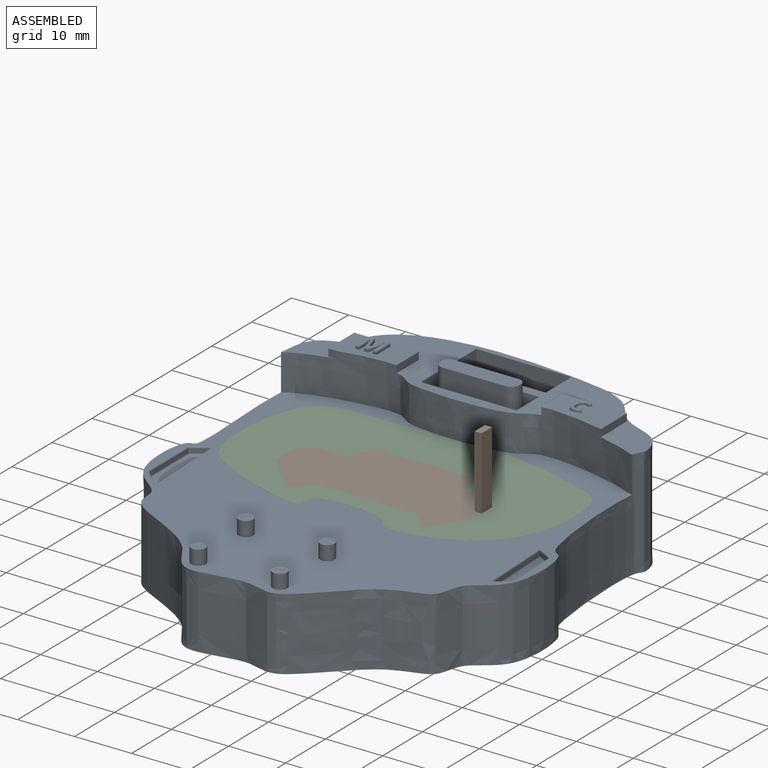
[diagram: assembled view]
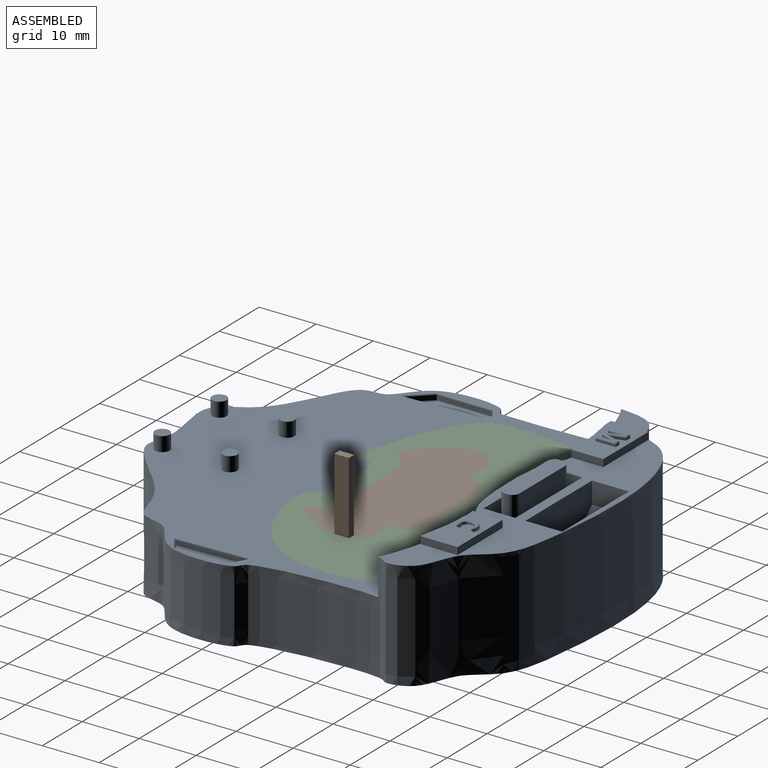
[diagram: assembled view, second angle]
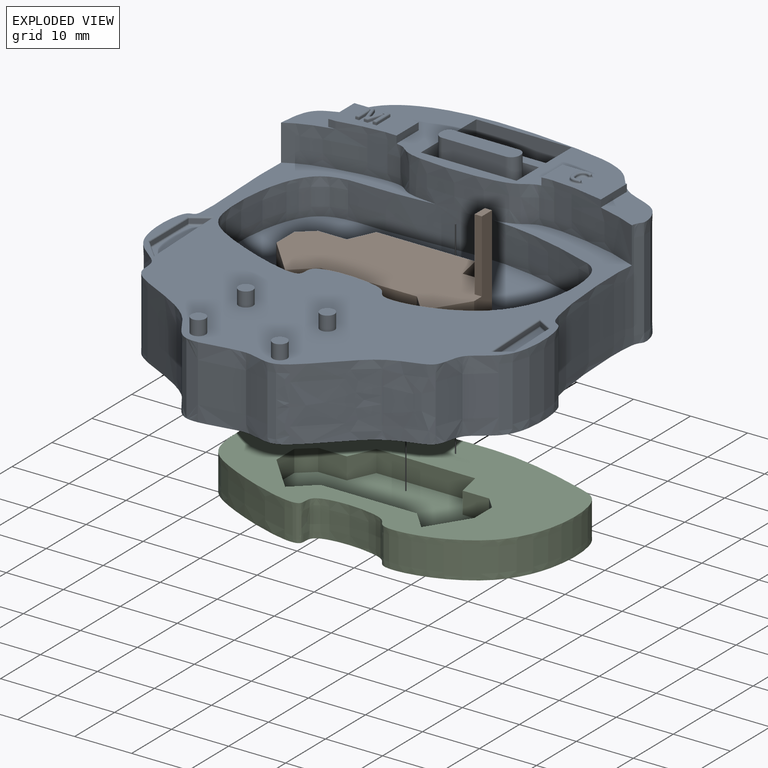
[diagram: exploded view]
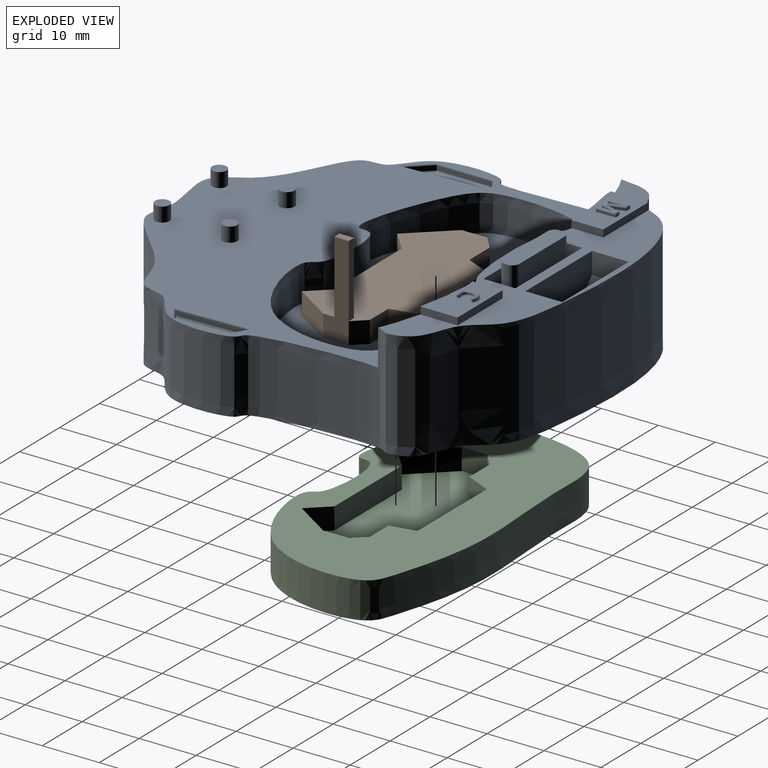
[diagram: exploded view, second angle]
ASSEMBLY  parts=3 mates=2
PART A: 167 faces, bbox 69.8x76.9x21.6 mm
  f0: plane 16.79x5.6mm, normal (0,0,1), area 53.1mm2, adj f41,f42,f43,f44,f46,f47,f48,f49
  f1: plane 62.76x18.55mm, normal (0,0,1), area 399.1mm2, adj f3,f5,f9,f10,f11,f13,f14,f15
  f2: plane 69.66x62.29mm, normal (0,0,1), area 1679.4mm2, adj f3,f5,f6,f28,f30,f32,f34,f93
  f3: extruded ~74.62x67.63mm, area 3259mm2, adj f1,f2,f4,f5
  f4: plane 76.82x69.76mm, normal (0,0,-1), area 3971.2mm2, adj f3,f45
  f5: extruded ~61.33x7.62mm, area 430.1mm2, adj f1,f2,f3,f8,f10,f11,f12,f14
  f6: extruded ~56.16x30.9mm, area 955.2mm2, adj f2,f7,f8
  f7: plane 57.77x32.86mm, normal (0,0,1), area 1458.8mm2, adj f6
  f8: plane 10.12x0.61mm, normal (0,0,-1), area 2.4mm2, adj f5,f6
  f9: plane 11.3x1.27mm, normal (0,1,0), area 14.4mm2, adj f1,f10,f11,f12
  f10: plane 5.29x1.27mm, normal (-1,0,0), area 6.7mm2, adj f1,f5,f9,f12
  f11: plane 6.53x1.27mm, normal (1,0,0), area 8.3mm2, adj f1,f5,f9,f12
  f12: plane 11.83x6.8mm, normal (0,0,1), area 56.3mm2, adj f5,f9,f10,f11,f128,f129,f132,f133
  f13: plane 6.53x1.27mm, normal (-1,0,0), area 8.3mm2, adj f1,f14,f16,f17
  f14: plane 1.3x1.27mm, normal (0,-1,0), area 1.6mm2, adj f1,f5,f13,f17
  f15: plane 5.58x1.27mm, normal (1,0,0), area 7.1mm2, adj f1,f5,f16,f17
  f16: plane 11.3x1.27mm, normal (0,1,0), area 14.4mm2, adj f1,f13,f15,f17
  f17: plane 11.51x6.74mm, normal (0,0,1), area 58.5mm2, adj f5,f13,f14,f15,f16,f55,f56,f57
  f18: plane 2.64x1.5mm, normal (-0.49,-0.87,0), area 2.3mm2, adj f19,f21,f93,f97
  f19: plane 12.67x0.76mm, normal (1,0.04,0), area 9.7mm2, adj f18,f20,f94,f98
  f20: plane 2.52x1.66mm, normal (-0.55,0.84,0), area 2.3mm2, adj f19,f21,f96,f100
  f21: plane 9.52x0.76mm, normal (-1,-0.04,0), area 7.3mm2, adj f18,f20,f95,f99
  f22: plane 11.77x2.49mm, normal (0,0,1), area 21.8mm2, adj f97,f98,f99,f100
  f23: plane 15.19x0.76mm, normal (-1,-0.04,0), area 11.6mm2, adj f24,f26,f102,f106
  f24: plane 2.81x1.85mm, normal (0.55,-0.84,0), area 2.6mm2, adj f23,f25,f104,f108
  f25: plane 9.78x0.76mm, normal (1,0,0), area 7.5mm2, adj f24,f26,f103,f107
  f26: plane 3.57x3.41mm, normal (0.72,0.69,0), area 3.8mm2, adj f23,f25,f101,f105
  f27: plane 14.07x2.88mm, normal (0,0,1), area 30.5mm2, adj f105,f106,f107,f108
  f28: cylinder r=1.27mm len=2.54mm, axis (0,0,-1), area 20.3mm2, adj f2,f29
  f29: plane 2.54x2.54mm, normal (0,0,1), area 5.1mm2, adj f28
  f30: cylinder r=1.27mm len=2.54mm, axis (0,0,-1), area 20.3mm2, adj f2,f31
  f31: plane 2.54x2.54mm, normal (0,0,1), area 5.1mm2, adj f30
  f32: cylinder r=1.27mm len=2.54mm, axis (0,0,-1), area 20.3mm2, adj f2,f33
  f33: plane 2.54x2.54mm, normal (0,0,1), area 5.1mm2, adj f32
  f34: cylinder r=1.27mm len=2.54mm, axis (0,0,-1), area 20.3mm2, adj f2,f35
  f35: plane 2.54x2.54mm, normal (0,0,1), area 5.1mm2, adj f34
  f36: plane 16.7x6.35mm, normal (0,-1,0), area 99.6mm2, adj f1,f37,f39,f40,f91,f92
  f37: plane 6.45x3.81mm, normal (1,0,0), area 24.6mm2, adj f1,f36,f38,f92
  f38: plane 16.7x6.35mm, normal (0,1,0), area 99.6mm2, adj f1,f37,f39,f40,f91,f92
  f39: plane 6.45x3.81mm, normal (-1,0,0), area 24.6mm2, adj f1,f36,f38,f91
  f40: plane 11.62x6.45mm, normal (0,0,1), area 56.7mm2, adj f36,f38,f45,f91,f92
  f41: plane 16.79x3.81mm, normal (0,-1,0), area 64mm2, adj f0,f1,f42,f44
  f42: plane 5.6x3.81mm, normal (1,0,0), area 21.3mm2, adj f0,f1,f41,f43
  f43: plane 16.79x3.81mm, normal (0,1,0), area 64mm2, adj f0,f1,f42,f44
  f44: plane 5.6x3.81mm, normal (-1,0,0), area 21.3mm2, adj f0,f1,f41,f43
  f45: cylinder r=2.41mm len=12.7mm, axis (0,0,1), area 192.5mm2, adj f4,f40
  f46: plane 6.35x0.27mm, normal (1,0,0), area 1.7mm2, adj f0,f47,f53,f54
  f47: cylinder r=1.27mm len=6.35mm, axis (0,0,-1), area 12.7mm2, adj f0,f46,f48,f54
  f48: plane 11.33x6.35mm, normal (0,1,0), area 71.9mm2, adj f0,f47,f49,f54
  f49: cylinder r=1.27mm len=6.35mm, axis (0,0,-1), area 12.7mm2, adj f0,f48,f50,f54
  f50: plane 6.35x0.52mm, normal (-1,0,0), area 3.3mm2, adj f0,f49,f51,f54
  f51: cylinder r=1.27mm len=6.35mm, axis (0,0,-1), area 12.7mm2, adj f0,f50,f52,f54
  f52: plane 11.08x6.35mm, normal (0,-1,0), area 70.4mm2, adj f0,f51,f53,f54
  f53: cylinder r=1.51mm len=6.35mm, axis (0,0,-1), area 15.1mm2, adj f0,f46,f52,f54
  f54: plane 13.87x3.06mm, normal (0,0,1), area 40.9mm2, adj f46,f47,f48,f49,f50,f51,f52,f53
  f55: plane 2.73x0.84mm, normal (-0.96,-0.29,0), area 1.1mm2, adj f17,f56,f73,f122
  f56: plane 0.68x0.38mm, normal (0,-1,0), area 0.3mm2, adj f17,f55,f57,f123
  f57: plane 2.72x0.9mm, normal (0.95,-0.31,0), area 1.1mm2, adj f17,f56,f58,f124
  f58: plane 0.67x0.58mm, normal (0,-1,0), area 0mm2, adj f17,f57,f59,f74,f115,f124
  f59: extruded ~0.81x0.38mm, area 0.3mm2, adj f17,f58,f60,f115
  f60: extruded ~0.38x0.27mm, area 0.1mm2, adj f17,f59,f61,f116
  f61: plane 1.65x0.38mm, normal (-1,0,0), area 0.6mm2, adj f17,f60,f62,f117
  f62: plane 0.69x0.38mm, normal (0,-1,0), area 0.3mm2, adj f17,f61,f63,f118
  f63: plane 3.48x0.38mm, normal (1,0,0), area 1.3mm2, adj f17,f62,f64,f119
  f64: plane 1x0.38mm, normal (0,1,0), area 0.4mm2, adj f17,f63,f65,f120
  f65: plane 2.66x0.87mm, normal (-0.95,0.31,0), area 1.1mm2, adj f17,f64,f66,f121
  f66: plane 0.67x0.58mm, normal (0,1,0), area 0mm2, adj f17,f65,f67,f74,f109,f121
  f67: plane 2.66x0.82mm, normal (0.96,0.3,0), area 1.1mm2, adj f17,f66,f68,f109
  f68: plane 1x0.38mm, normal (0,1,0), area 0.4mm2, adj f17,f67,f69,f110
  f69: plane 3.48x0.38mm, normal (-1,0,0), area 1.3mm2, adj f17,f68,f70,f111
  f70: plane 0.66x0.38mm, normal (0,-1,0), area 0.3mm2, adj f17,f69,f71,f112
  f71: plane 1.62x0.38mm, normal (1,0,0), area 0.6mm2, adj f17,f70,f72,f113
  f72: extruded ~1.11x0.38mm, area 0.4mm2, adj f17,f71,f73,f114
  f73: plane 0.67x0.57mm, normal (0,-1,0), area 0mm2, adj f17,f55,f72,f74,f114,f122
  f74: plane 3.21x2.97mm, normal (0,0,1), area 1.9mm2, adj f58,f66,f73,f109,f110,f111,f112,f113
  f75: extruded ~0.6x0.29mm, area 0.1mm2, adj f76,f89,f151,f155
  f76: extruded ~0.36x0.13mm, area 0mm2, adj f75,f77,f156,f159
  f77: extruded ~0.14x0.13mm, area 0mm2, adj f76,f160,f163,f166
  f78: plane 0.13x0.09mm, normal (0.93,-0.37,0), area 0mm2, adj f153,f161,f162,f166
  f79: extruded ~0.71x0.13mm, area 0.1mm2, adj f80,f152,f153,f154
  f80: extruded ~0.81x0.2mm, area 0.1mm2, adj f79,f81,f148,f149
  f81: extruded ~0.59x0.53mm, area 0.1mm2, adj f80,f82,f144,f145
  f82: extruded ~0.89x0.19mm, area 0.1mm2, adj f81,f83,f140,f141
  f83: extruded ~1.24x0.38mm, area 0.2mm2, adj f82,f84,f136,f137
  f84: extruded ~1.09x0.43mm, area 0.2mm2, adj f83,f85,f131,f132
  f85: extruded ~0.72x0.13mm, area 0.1mm2, adj f84,f125,f127,f128
  f86: plane 0.13x0.06mm, normal (1,0,0), area 0mm2, adj f125,f130,f133,f134
  f87: extruded ~0.51x0.13mm, area 0.1mm2, adj f88,f134,f139,f142
  f88: extruded ~1.09x0.82mm, area 0.2mm2, adj f87,f89,f143,f146
  f89: extruded ~0.82x0.21mm, area 0.1mm2, adj f75,f88,f147,f150
  f90: plane 2.84x1.9mm, normal (0,0,1), area 0.7mm2, adj f127,f130,f131,f136,f139,f140,f143,f144
  f91: plane 6.45x2.54mm, normal (-0.71,0,0.71), area 23.2mm2, adj f36,f38,f39,f40
  f92: plane 6.45x2.54mm, normal (0.71,0,0.71), area 23.2mm2, adj f36,f37,f38,f40
  f93: cylinder r=0.25mm len=3.29mm, axis (0.87,-0.49,0), area 1.3mm2, adj f2,f18,f94,f95
  f94: cylinder r=0.25mm len=13.59mm, axis (-0.04,1,0), area 5.2mm2, adj f2,f19,f93,f96
  f95: cylinder r=0.25mm len=9.81mm, axis (0.04,-1,0), area 3.9mm2, adj f2,f21,f93,f96
  f96: cylinder r=0.25mm len=3.15mm, axis (-0.84,-0.55,0), area 1.3mm2, adj f2,f20,f94,f95
  f97: cylinder r=0.25mm len=2.77mm, axis (-0.87,0.49,0), area 1.1mm2, adj f18,f22,f98,f99
  f98: cylinder r=0.25mm len=12.68mm, axis (0.04,-1,0), area 4.9mm2, adj f19,f22,f97,f100
  f99: cylinder r=0.25mm len=9.53mm, axis (-0.04,1,0), area 3.7mm2, adj f21,f22,f97,f100
  f100: cylinder r=0.25mm len=2.66mm, axis (0.84,0.55,0), area 1.1mm2, adj f20,f22,f98,f99
  f101: cylinder r=0.25mm len=4.3mm, axis (-0.69,0.72,0), area 2.1mm2, adj f2,f26,f102,f103
  f102: cylinder r=0.25mm len=16.32mm, axis (0.04,-1,0), area 6.3mm2, adj f2,f23,f101,f104
  f103: cylinder r=0.25mm len=10.02mm, axis (0,1,0), area 3.9mm2, adj f2,f25,f101,f104
  f104: cylinder r=0.25mm len=3.44mm, axis (0.84,0.55,0), area 1.5mm2, adj f2,f24,f102,f103
  f105: cylinder r=0.25mm len=3.74mm, axis (0.69,-0.72,0), area 1.8mm2, adj f26,f27,f106,f107
  f106: cylinder r=0.25mm len=15.2mm, axis (-0.04,1,0), area 5.8mm2, adj f23,f27,f105,f108
  f107: cylinder r=0.25mm len=9.78mm, axis (0,-1,0), area 3.9mm2, adj f25,f27,f105,f108
  f108: cylinder r=0.25mm len=2.95mm, axis (-0.84,-0.55,0), area 1.2mm2, adj f24,f27,f106,f107
  f109: cylinder r=0.25mm len=2.73mm, axis (0.3,-0.96,0), area 1.1mm2, adj f66,f67,f74,f110
  f110: cylinder r=0.25mm len=1mm, axis (1,0,0), area 0.3mm2, adj f68,f74,f109,f111
  f111: cylinder r=0.25mm len=3.48mm, axis (0,1,0), area 1.3mm2, adj f69,f74,f110,f112
  f112: cylinder r=0.25mm len=0.66mm, axis (-1,0,0), area 0.2mm2, adj f70,f74,f111,f113
  f113: cylinder r=0.25mm len=1.62mm, axis (0,-1,0), area 0.6mm2, adj f71,f74,f112,f114
  f114: bspline ~1.52x0.31mm, area 0.4mm2, adj f72,f73,f74,f113
  f115: bspline ~1.12x0.3mm, area 0.3mm2, adj f58,f59,f74,f116
  f116: bspline ~0.33x0.26mm, area 0.1mm2, adj f60,f74,f115,f117
  f117: cylinder r=0.25mm len=1.65mm, axis (0,1,0), area 0.6mm2, adj f61,f74,f116,f118
  f118: cylinder r=0.25mm len=0.69mm, axis (-1,0,0), area 0.2mm2, adj f62,f74,f117,f119
  f119: cylinder r=0.25mm len=3.48mm, axis (0,-1,0), area 1.3mm2, adj f63,f74,f118,f120
  f120: cylinder r=0.25mm len=1mm, axis (1,0,0), area 0.3mm2, adj f64,f74,f119,f121
  f121: cylinder r=0.25mm len=2.74mm, axis (0.31,0.95,0), area 1.1mm2, adj f65,f66,f74,f120
  f122: cylinder r=0.25mm len=2.8mm, axis (-0.29,0.96,0), area 1.1mm2, adj f55,f73,f74,f123
  f123: cylinder r=0.25mm len=0.68mm, axis (-1,0,0), area 0.2mm2, adj f56,f74,f122,f124
  f124: cylinder r=0.25mm len=2.8mm, axis (-0.31,-0.95,0), area 1.1mm2, adj f57,f58,f74,f123
  f125: cylinder r=0.25mm len=0.24mm, axis (0,0,-1), area 0mm2, adj f85,f86,f126,f129
  f126: sphere r=0.25mm, area 0mm2, adj f125,f127,f130
  f127: bspline ~0.99x0.37mm, area 0.3mm2, adj f85,f90,f126,f131
  f128: bspline ~1.09x0.38mm, area 0.3mm2, adj f12,f85,f129,f132
  f129: torus R=0.51mm, axis (0,0,1), area 0.2mm2, adj f12,f125,f128,f133
  f130: cylinder r=0.25mm len=0.25mm, axis (0,-1,0), area 0mm2, adj f86,f90,f126,f135
  f131: bspline ~1.67x0.86mm, area 0.5mm2, adj f84,f90,f127,f136
  f132: bspline ~1.86x0.95mm, area 0.5mm2, adj f12,f84,f128,f137
  f133: cylinder r=0.25mm len=0.25mm, axis (0,1,0), area 0mm2, adj f12,f86,f129,f138
  f134: cylinder r=0.25mm len=0.32mm, axis (0,0,-1), area 0.1mm2, adj f86,f87,f135,f138
  f135: sphere r=0.25mm, area 0.1mm2, adj f130,f134,f139
  f136: bspline ~1.8x0.61mm, area 0.5mm2, adj f83,f90,f131,f140
  f137: bspline ~2.11x0.8mm, area 0.6mm2, adj f12,f83,f132,f141
  f138: torus R=0.51mm, axis (0,0,1), area 0.3mm2, adj f12,f133,f134,f142
  f139: bspline ~0.93x0.37mm, area 0.2mm2, adj f87,f90,f135,f143
  f140: bspline ~1.13x0.43mm, area 0.3mm2, adj f82,f90,f136,f144
  f141: bspline ~1.22x0.52mm, area 0.4mm2, adj f12,f82,f137,f145
  f142: bspline ~0.75x0.35mm, area 0.2mm2, adj f12,f87,f138,f146
  f143: bspline ~1.98x1.57mm, area 0.7mm2, adj f88,f90,f139,f147
  f144: bspline ~0.87x0.77mm, area 0.3mm2, adj f81,f90,f140,f148
  f145: bspline ~0.93x0.92mm, area 0.3mm2, adj f12,f81,f141,f149
  f146: bspline ~1.55x1.14mm, area 0.6mm2, adj f12,f88,f142,f150
  f147: bspline ~1.16x0.58mm, area 0.4mm2, adj f89,f90,f143,f151
  f148: bspline ~1.02x0.51mm, area 0.3mm2, adj f80,f90,f144,f152
  f149: bspline ~1.16x0.48mm, area 0.4mm2, adj f12,f80,f145,f154
  f150: bspline ~1.04x0.45mm, area 0.3mm2, adj f12,f89,f146,f155
  f151: bspline ~1.02x0.58mm, area 0.3mm2, adj f75,f90,f147,f156
  f152: bspline ~1.07x0.42mm, area 0.3mm2, adj f79,f90,f148,f157
  f153: cylinder r=0.25mm len=0.33mm, axis (0,0,-1), area 0.1mm2, adj f78,f79,f157,f158
  f154: bspline ~1.16x0.42mm, area 0.3mm2, adj f12,f79,f149,f158
  f155: bspline ~0.77x0.6mm, area 0.2mm2, adj f12,f75,f150,f159
  f156: bspline ~0.54x0.35mm, area 0.2mm2, adj f76,f90,f151,f160
  f157: sphere r=0.25mm, area 0.1mm2, adj f152,f153,f161
  f158: torus R=0.51mm, axis (0,0,1), area 0.2mm2, adj f12,f153,f154,f162
  f159: bspline ~0.46x0.31mm, area 0.1mm2, adj f12,f76,f155,f163
  f160: bspline ~0.34x0.33mm, area 0.1mm2, adj f77,f90,f156,f164
  f161: cylinder r=0.25mm len=0.27mm, axis (-0.37,-0.93,0), area 0mm2, adj f78,f90,f157,f164
  f162: cylinder r=0.25mm len=0.27mm, axis (0.37,0.93,0), area 0mm2, adj f12,f78,f158,f165
  f163: bspline ~0.35x0.33mm, area 0.1mm2, adj f12,f77,f159,f165
  f164: sphere r=0.25mm, area 0.1mm2, adj f160,f161,f166
  f165: torus R=0.51mm, axis (0,0,1), area 0.2mm2, adj f12,f162,f163,f166
  f166: cylinder r=0.25mm len=0.33mm, axis (0,0,-1), area 0.1mm2, adj f77,f78,f164,f165
PART B: 25 faces, bbox 34.7x18.1x16.5 mm
  f0: plane 17.34x3.81mm, normal (0,1,0), area 66.1mm2, adj f1,f13,f14,f15
  f1: plane 4.47x3.81mm, normal (-0.91,0.42,0), area 18.8mm2, adj f0,f2,f14,f15
  f2: plane 5.03x3.81mm, normal (0,1,0), area 19.2mm2, adj f1,f3,f14,f15
  f3: plane 3.81x2.61mm, normal (-0.65,0.76,0), area 13.1mm2, adj f2,f4,f14,f15
  f4: plane 4.47x3.81mm, normal (-1,0,0), area 17mm2, adj f3,f5,f14,f15
  f5: plane 6.9x6.34mm, normal (-0.74,-0.68,0), area 35.7mm2, adj f4,f6,f14,f15
  f6: plane 3.81x3.79mm, normal (0.68,-0.74,0), area 19.6mm2, adj f5,f7,f14,f15
  f7: plane 16.91x3.81mm, normal (0,-1,0), area 64.4mm2, adj f6,f8,f14,f15
  f8: plane 3.81x3.48mm, normal (-0.74,-0.68,0), area 18mm2, adj f7,f9,f14,f15
  f9: plane 6.9x4.45mm, normal (0.84,-0.54,0), area 31.3mm2, adj f8,f10,f14,f15
  f10: plane 16.51x4.47mm, normal (1,0,0), area 49.3mm2, adj f9,f11,f14,f15,f21,f22,f23
  f11: plane 3.81x2.24mm, normal (0.74,0.68,0), area 11.6mm2, adj f10,f12,f14,f15
  f12: plane 4.66x3.81mm, normal (0,1,0), area 17.8mm2, adj f11,f13,f14,f15
  f13: plane 4.47x3.81mm, normal (0.98,0.2,0), area 17.4mm2, adj f0,f12,f14,f15
  f14: plane 34.68x18.08mm, normal (0,0,1), area 439.5mm2, adj f0,f1,f2,f3,f4,f5,f6,f7
  f15: plane 34.68x18.08mm, normal (0,0,-1), area 260.1mm2, adj f0,f1,f2,f3,f4,f5,f6,f7
  f16: plane 17.29x2.54mm, normal (0,-1,0), area 43.9mm2, adj f15,f17,f19,f20
  f17: plane 10.56x2.54mm, normal (1,0,0), area 26.8mm2, adj f15,f16,f18,f20
  f18: plane 17.29x2.54mm, normal (0,1,0), area 43.9mm2, adj f15,f17,f19,f20
  f19: plane 10.56x2.54mm, normal (-1,0,0), area 26.8mm2, adj f15,f16,f18,f20
  f20: plane 17.29x10.56mm, normal (0,0,-1), area 182.7mm2, adj f16,f17,f18,f19
  f21: plane 12.7x1.27mm, normal (0,-1,0), area 16.1mm2, adj f10,f14,f23,f24
  f22: plane 12.7x1.27mm, normal (0,1,0), area 16.1mm2, adj f10,f14,f23,f24
  f23: plane 2.54x1.27mm, normal (0,0,1), area 3.2mm2, adj f10,f21,f22,f24
  f24: plane 12.7x2.54mm, normal (-1,0,0), area 32.3mm2, adj f14,f21,f22,f23
PART C: 18 faces, bbox 57.8x32.9x6.4 mm
  f0: extruded ~56.16x30.9mm, area 955.2mm2, adj f1,f2
  f1: plane 57.77x32.86mm, normal (0,0,1), area 1016mm2, adj f0,f3,f4,f5,f6,f7,f8,f9
  f2: plane 57.77x32.86mm, normal (0,0,-1), area 1458.8mm2, adj f0
  f3: plane 17.34x3.81mm, normal (0,-1,0), area 66.1mm2, adj f1,f4,f16,f17
  f4: plane 4.47x3.81mm, normal (0.91,-0.42,0), area 18.8mm2, adj f1,f3,f5,f17
  f5: plane 5.03x3.81mm, normal (0,-1,0), area 19.2mm2, adj f1,f4,f6,f17
  f6: plane 3.81x2.61mm, normal (0.65,-0.76,0), area 13.1mm2, adj f1,f5,f7,f17
  f7: plane 4.47x3.81mm, normal (1,0,0), area 17mm2, adj f1,f6,f8,f17
  f8: plane 6.9x6.34mm, normal (0.74,0.68,0), area 35.7mm2, adj f1,f7,f9,f17
  f9: plane 3.81x3.79mm, normal (-0.68,0.74,0), area 19.6mm2, adj f1,f8,f10,f17
  f10: plane 16.91x3.81mm, normal (0,1,0), area 64.4mm2, adj f1,f9,f11,f17
  f11: plane 3.81x3.48mm, normal (0.74,0.68,0), area 18mm2, adj f1,f10,f12,f17
  f12: plane 6.9x4.45mm, normal (-0.84,0.54,0), area 31.3mm2, adj f1,f11,f13,f17
  f13: plane 4.47x3.81mm, normal (-1,0,0), area 17mm2, adj f1,f12,f14,f17
  f14: plane 3.81x2.24mm, normal (-0.74,-0.68,0), area 11.6mm2, adj f1,f13,f15,f17
  f15: plane 4.66x3.81mm, normal (0,-1,0), area 17.8mm2, adj f1,f14,f16,f17
  f16: plane 4.47x3.81mm, normal (-0.98,-0.2,0), area 17.4mm2, adj f1,f3,f15,f17
  f17: plane 34.68x18.08mm, normal (0,0,1), area 442.8mm2, adj f3,f4,f5,f6,f7,f8,f9,f10
PLACE A t=(-25.63,6.7,-3.77)mm fixed
PLACE B t=(-91.87,-59.18,5.12)mm
PLACE C t=(-112.16,5.32,2.58)mm
MATE fastened A.f7 <-> C.f2  axis (0,0,1) through (-90.23,-34.87,2.58)mm
MATE fastened B.f15 <-> C.f17  axis (0,0,-1) through (-82.69,-29.08,5.12)mm
